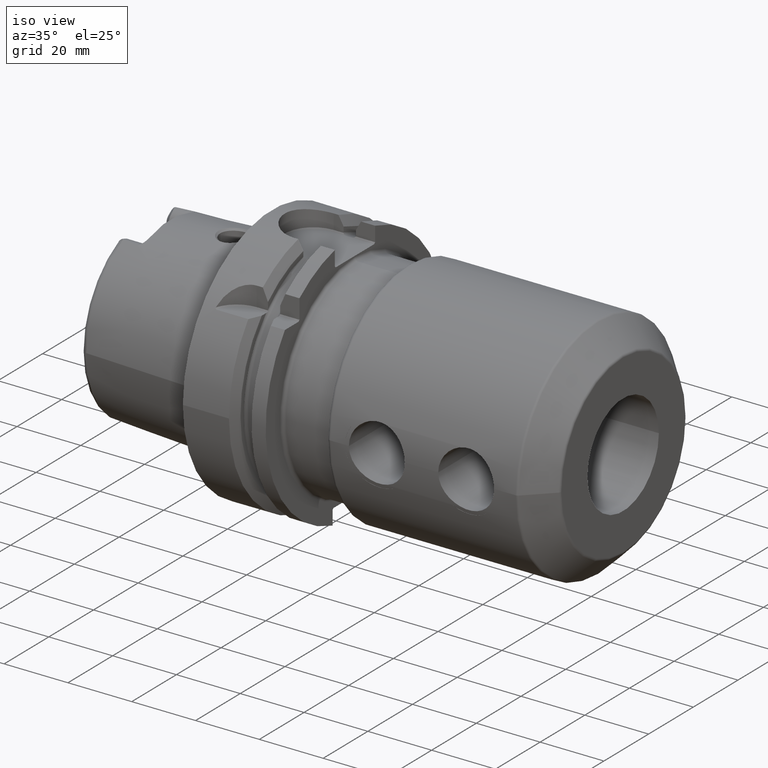
[diagram: clean part render]
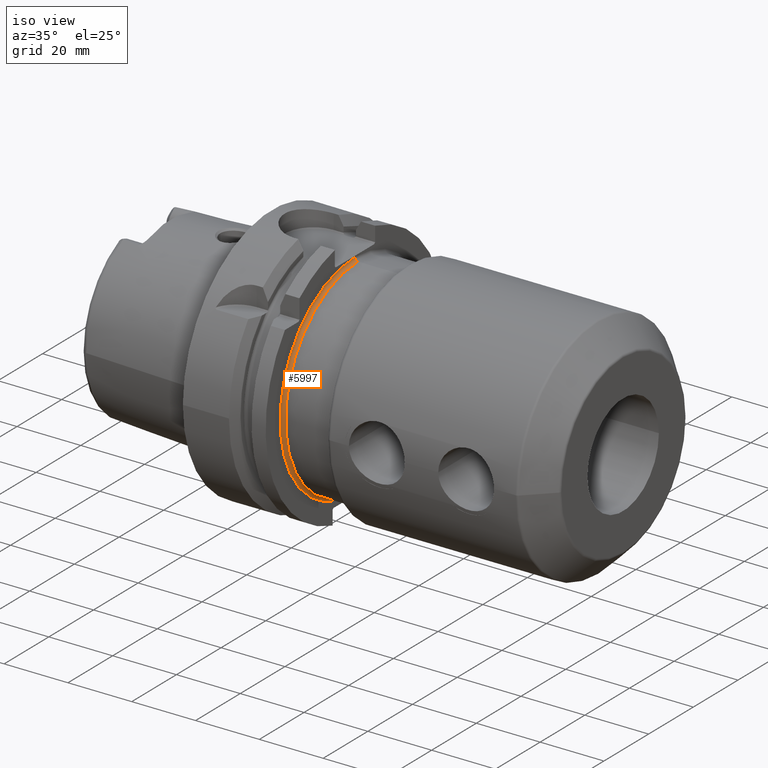
[diagram: same view with one face highlighted and labeled with its STEP entity id]
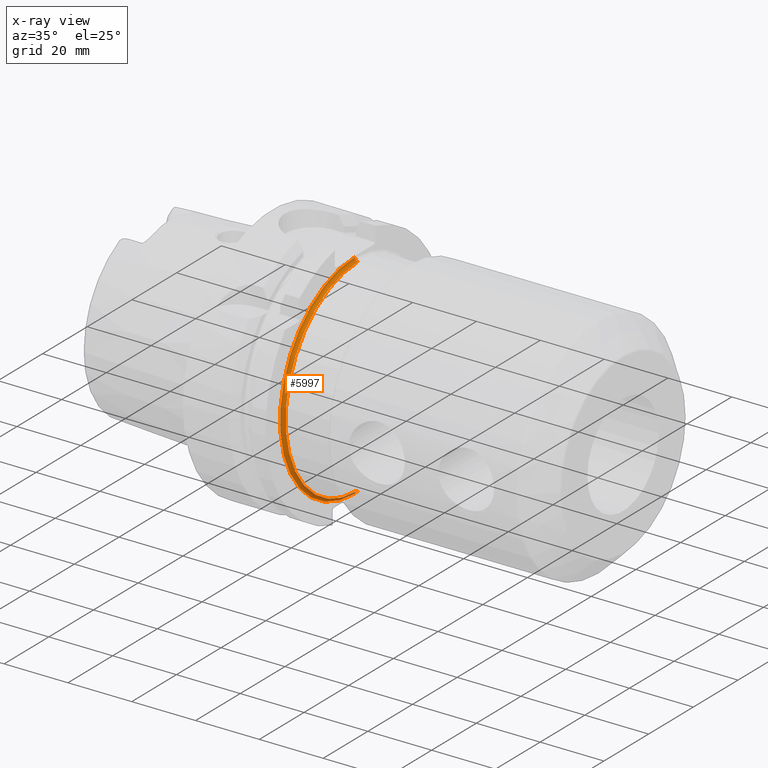
[diagram: x-ray of the same camera — body ghosted, the highlighted face saturated]
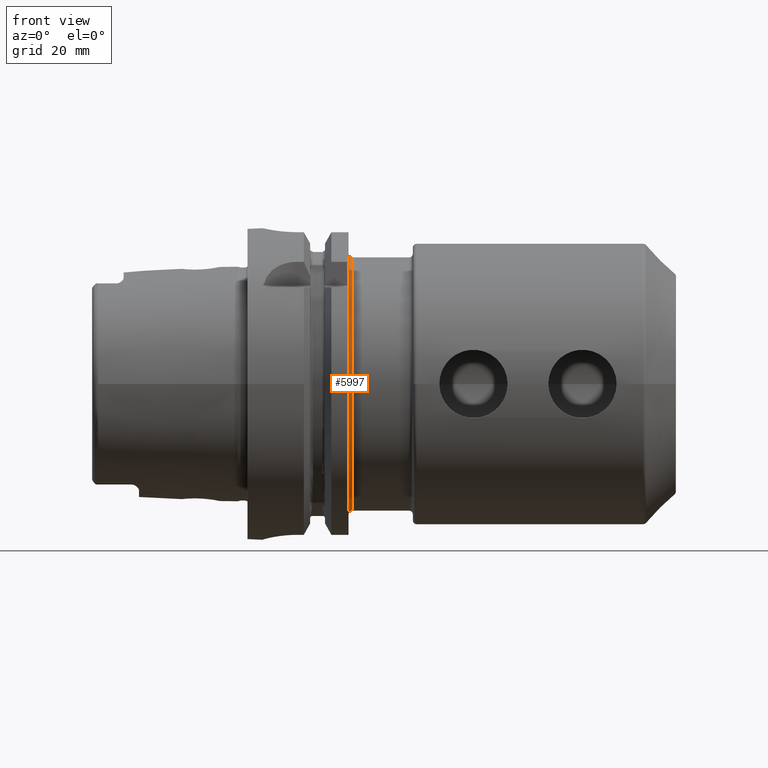
[diagram: same view with one face highlighted and labeled with its STEP entity id]
A machine part, iso view. The second image highlights one B-rep face of the part: STEP entity #5997.
The next image is the same camera in x-ray: the body ghosted, the highlighted face saturated — about 2% of this face is hidden behind the body in this view.
A second angle (front view) of the same face is appended — the face is thin or edge-on in the first view.
In plain terms, the highlighted toroidal blend (fillet) surface has major radius 33.5 mm and minor (blend) radius 1 mm.
Its self-contained STEP definition (entity closure, byte-faithful):
#1621=CARTESIAN_POINT('',(2.595E1,0.E0,0.E0));
#1622=DIRECTION('',(1.E0,0.E0,0.E0));
#1623=DIRECTION('',(0.E0,0.E0,1.E0));
#1624=AXIS2_PLACEMENT_3D('',#1621,#1622,#1623);
#2107=CARTESIAN_POINT('',(2.695E1,-1.235123114895E-14,-3.35E1));
#2108=DIRECTION('',(0.E0,1.E0,0.E0));
#2109=DIRECTION('',(-1.E0,0.E0,0.E0));
#2110=AXIS2_PLACEMENT_3D('',#2107,#2108,#2109);
#2112=CARTESIAN_POINT('',(2.695E1,0.E0,3.35E1));
#2113=DIRECTION('',(0.E0,-1.E0,0.E0));
#2114=DIRECTION('',(-1.E0,0.E0,0.E0));
#2115=AXIS2_PLACEMENT_3D('',#2112,#2113,#2114);
#2126=CARTESIAN_POINT('',(2.695E1,0.E0,0.E0));
#2127=DIRECTION('',(1.E0,0.E0,0.E0));
#2128=DIRECTION('',(0.E0,0.E0,1.E0));
#2129=AXIS2_PLACEMENT_3D('',#2126,#2127,#2128);
#3673=CARTESIAN_POINT('',(2.595E1,0.E0,-3.35E1));
#3674=CARTESIAN_POINT('',(2.595E1,1.230770033143E-14,3.35E1));
#3675=VERTEX_POINT('',#3673);
#3676=VERTEX_POINT('',#3674);
#3677=CARTESIAN_POINT('',(2.695E1,1.045279722290E-14,-3.25E1));
#3678=CARTESIAN_POINT('',(2.695E1,0.E0,3.25E1));
#3679=VERTEX_POINT('',#3677);
#3680=VERTEX_POINT('',#3678);
#5985=CARTESIAN_POINT('',(2.695E1,0.E0,0.E0));
#5986=DIRECTION('',(-1.E0,0.E0,0.E0));
#5987=DIRECTION('',(0.E0,3.360547520854E-3,9.999943533442E-1));
#5988=AXIS2_PLACEMENT_3D('',#5985,#5986,#5987);
#5989=TOROIDAL_SURFACE('',#5988,3.35E1,1.E0);
#5990=ORIENTED_EDGE('',*,*,#5445,.F.);
#5991=ORIENTED_EDGE('',*,*,#5980,.T.);
#5993=ORIENTED_EDGE('',*,*,#5992,.T.);
#5994=ORIENTED_EDGE('',*,*,#5976,.F.);
#5995=EDGE_LOOP('',(#5990,#5991,#5993,#5994));
#5996=FACE_OUTER_BOUND('',#5995,.F.);
#5997=ADVANCED_FACE('',(#5996),#5989,.F.);
#1625=CIRCLE('',#1624,3.35E1);
#2111=CIRCLE('',#2110,1.E0);
#2116=CIRCLE('',#2115,1.E0);
#2130=CIRCLE('',#2129,3.25E1);
#5445=EDGE_CURVE('',#3676,#3675,#1625,.T.);
#5976=EDGE_CURVE('',#3675,#3679,#2111,.T.);
#5980=EDGE_CURVE('',#3676,#3680,#2116,.T.);
#5992=EDGE_CURVE('',#3680,#3679,#2130,.T.);